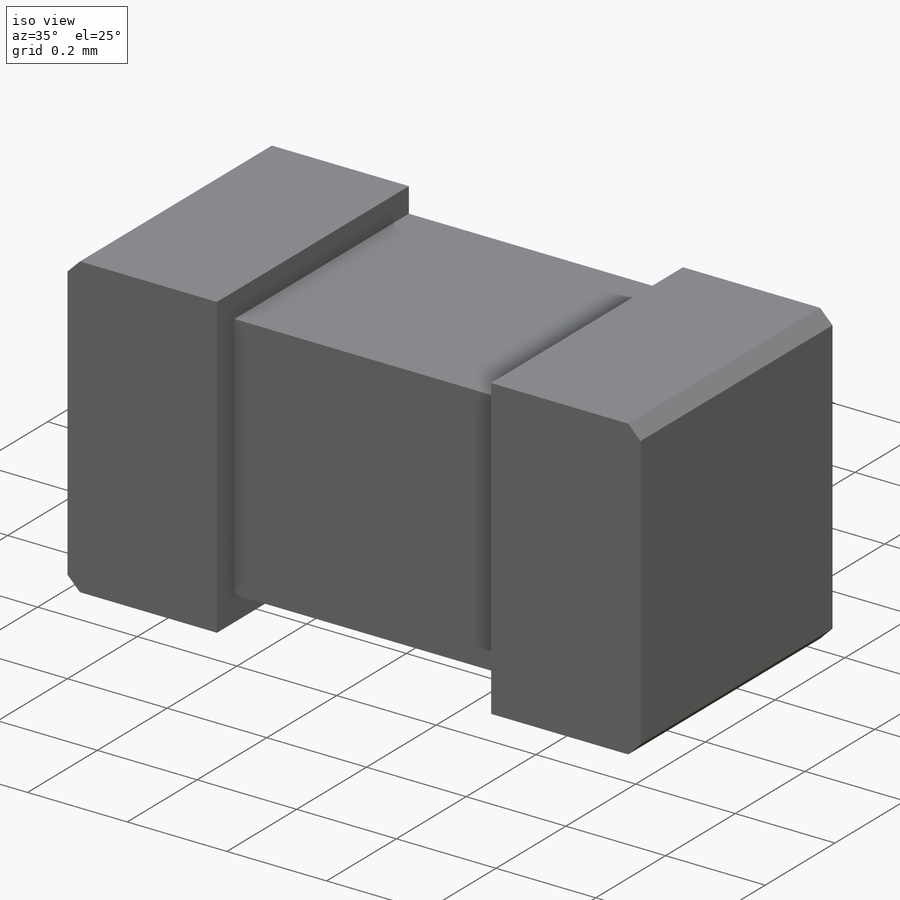
[diagram: iso view]
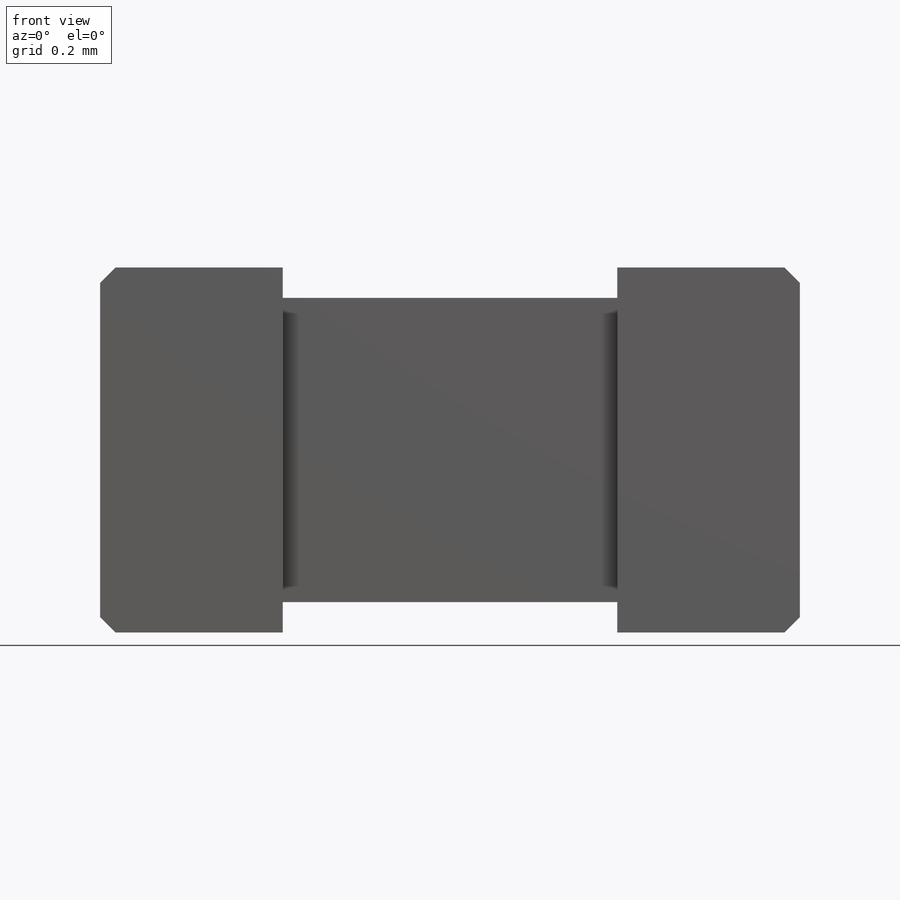
[diagram: front view]
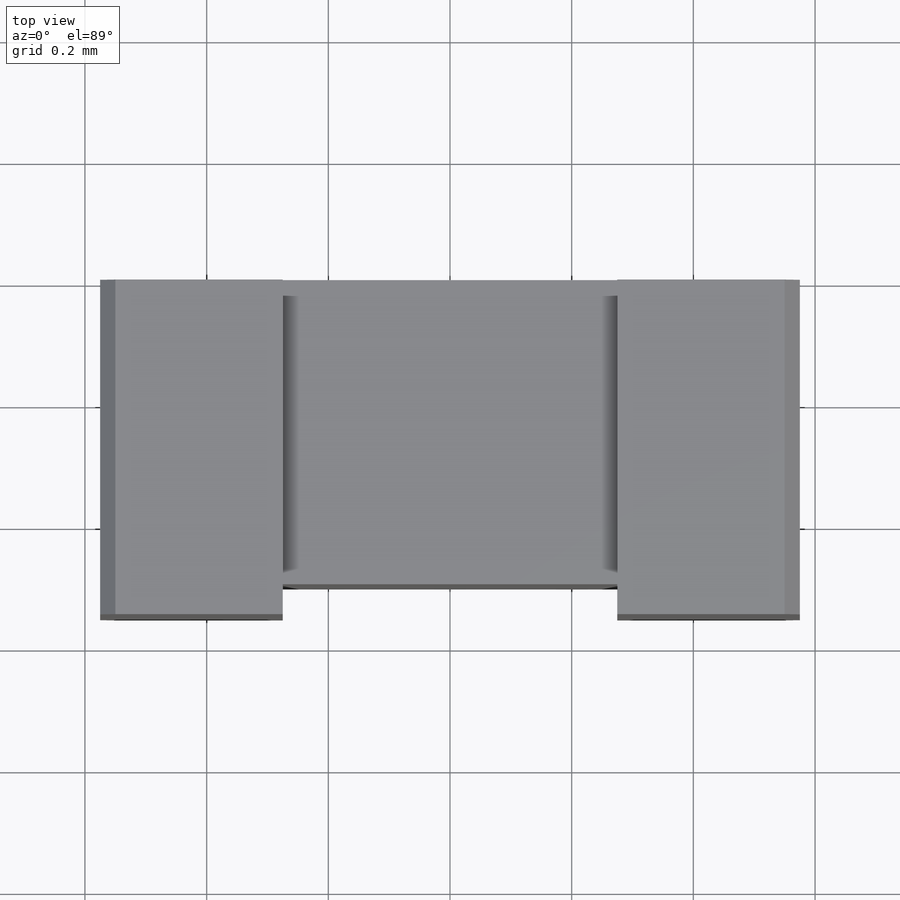
[diagram: top view]
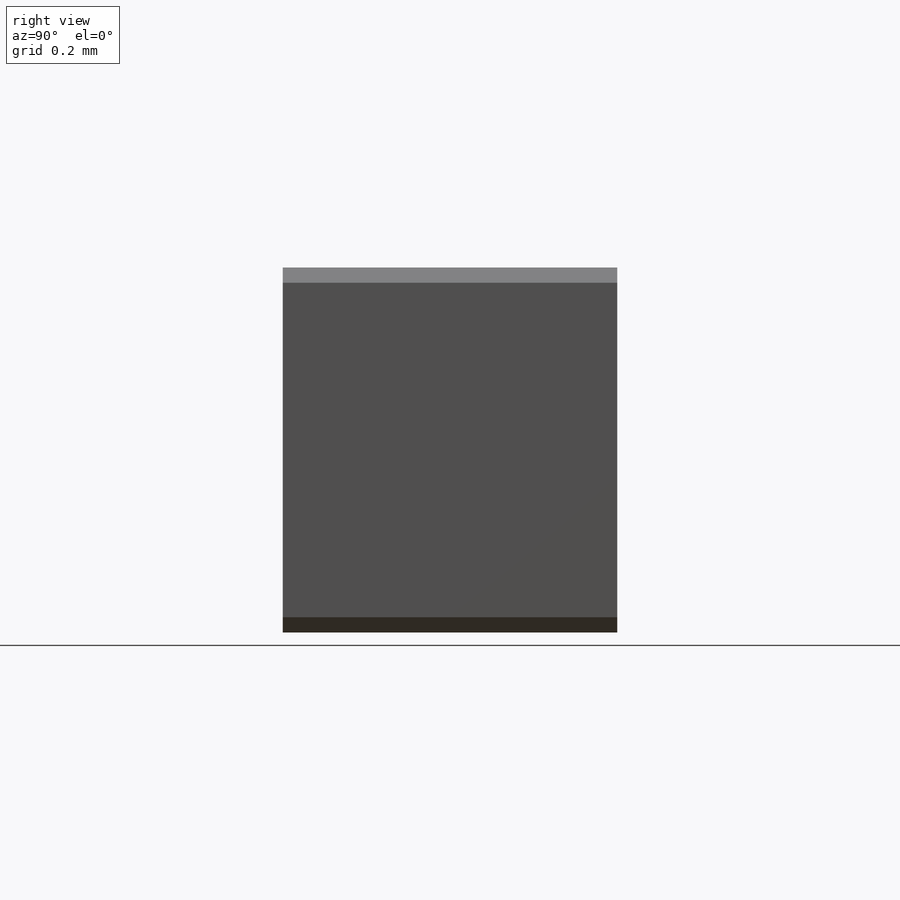
[diagram: right view]
SOLIDWORKS PART (.sldprt)
format: sldprt  version: not decoded by parser v0  size: 217,088 bytes
history: native  units: mm
features: sketch x3, cut_extrude x2, material x1, extrude x1 (+12 scaffold rows collapsed)
feature tree (19):
  scaffold x12  (default folders/planes/origin — collapsed)
  material  "Material <not specified>"
  sketch  "COMPONENT_OUTLINE"
  extrude  "Extrude1"  Depth=0.55mm
  sketch  "Sketch1"  dims[D1=0.05mm D2=0.3mm D3=0.3mm D4=0.0mm]
  cut_extrude  "Cut-Extrude1"  Depth=10mm
  sketch  "Sketch2"  dims[c1.D2=0.05mm c1.D1=0.0mm c2.D2=0.1mm]
  cut_extrude  "Cut-Extrude2"  Depth=10mm
decode coverage: 5 of 6 modeling features carry decoded parameters
note: suppression state not decoded; provenance and decode notes live in map.json
